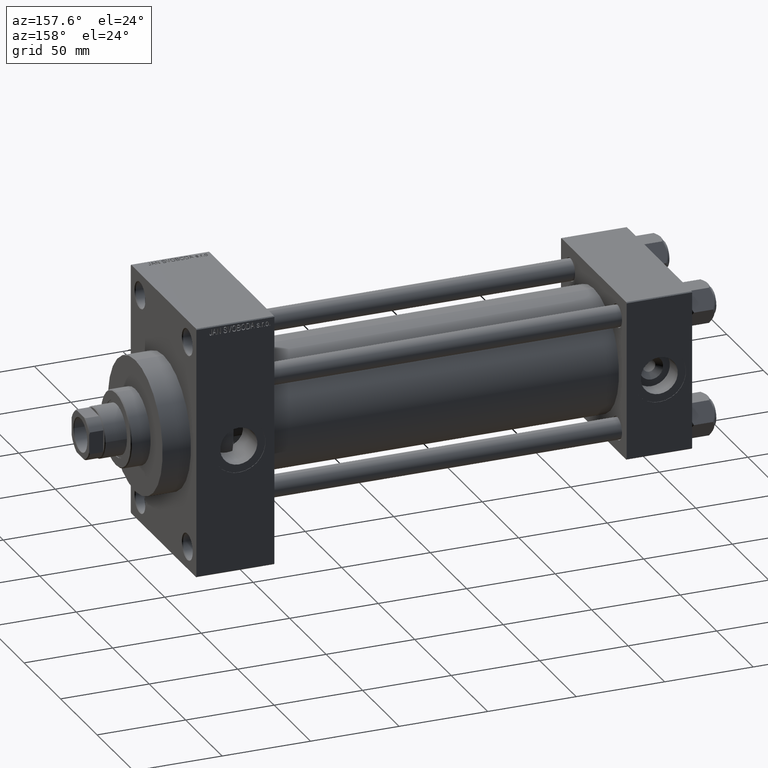
[diagram: clean part render]
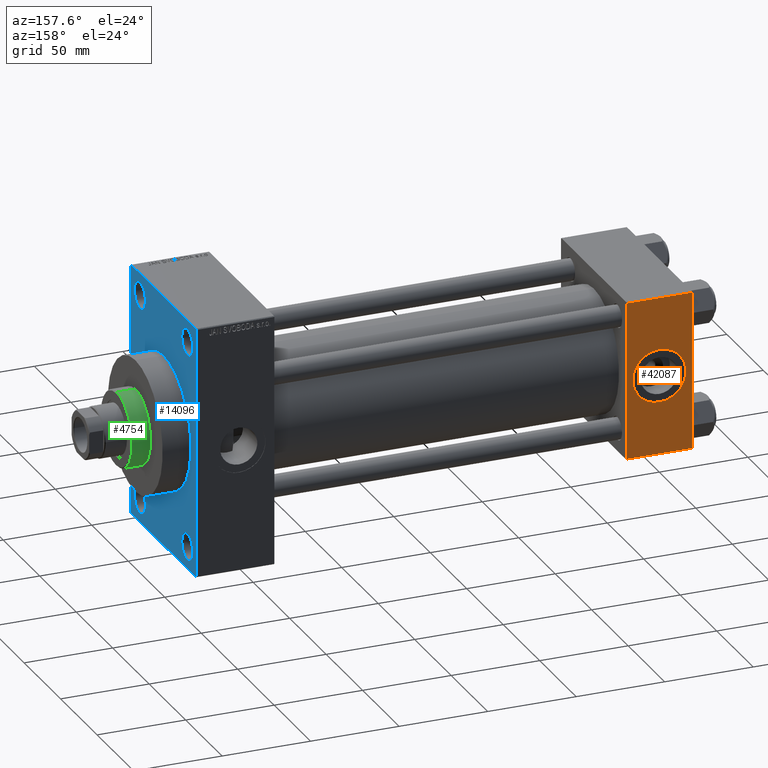
[diagram: same view with three faces highlighted in distinct colors, each labeled with its STEP entity id]
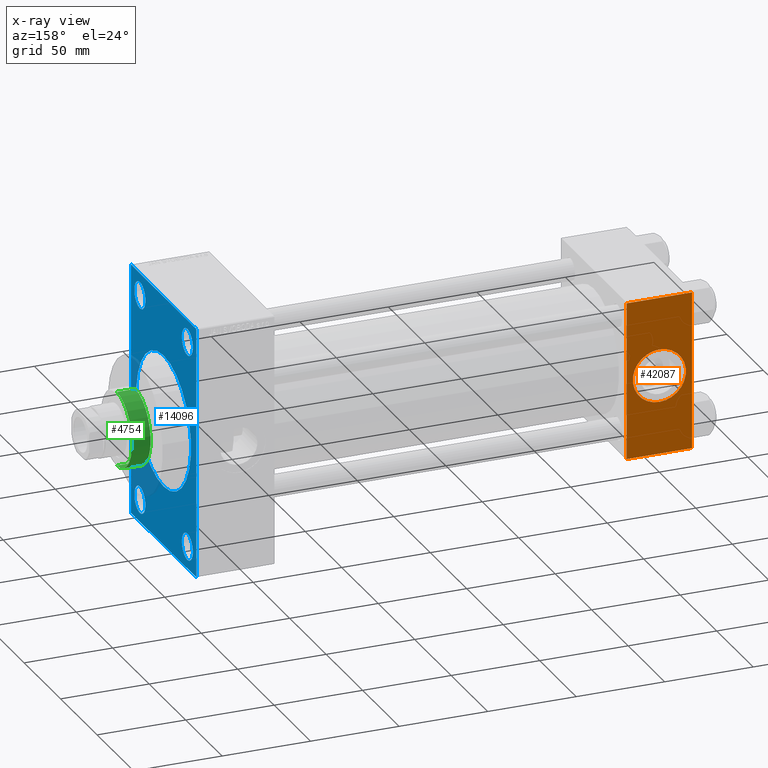
[diagram: x-ray of the same camera — body ghosted, the three highlighted faces saturated]
A machine part, auxiliary view with three faces highlighted in distinct colors.
The next image is the same camera in x-ray (body ghosted, the three faces saturated) — at least one of them is partly hidden behind the body in this view.
Their STEP definitions:

[orange] entity #42087 — the highlighted planar face has unit normal (0, 1, 0).
#2164 = VECTOR ( 'NONE', #42277, 1000.000000000000000 ) ;
#2484 = DIRECTION ( 'NONE',  ( 0.000000000000000000, -0.000000000000000000, 1.000000000000000000 ) ) ;
#3072 = VECTOR ( 'NONE', #43071, 1000.000000000000000 ) ;
#6041 = AXIS2_PLACEMENT_3D ( 'NONE', #17683, #14819, #43485 ) ;
#6530 = CARTESIAN_POINT ( 'NONE',  ( 37.00000000000000000, 44.99999999999998579, -44.49999999999998579 ) ) ;
#6641 = VECTOR ( 'NONE', #31370, 1000.000000000000000 ) ;
#6808 = LINE ( 'NONE', #10851, #13464 ) ;
#7110 = DIRECTION ( 'NONE',  ( 0.000000000000000000, 0.000000000000000000, 1.000000000000000000 ) ) ;
#9080 = AXIS2_PLACEMENT_3D ( 'NONE', #28343, #28807, #7110 ) ;
#9793 = EDGE_CURVE ( 'NONE', #23307, #25663, #6808, .T. ) ;
#10586 = EDGE_LOOP ( 'NONE', ( #40271, #16792, #35676, #43246 ) ) ;
#10851 = CARTESIAN_POINT ( 'NONE',  ( 0.000000000000000000, 44.99999999999998579, 45.00000000000001421 ) ) ;
#12004 = EDGE_LOOP ( 'NONE', ( #22883, #13448 ) ) ;
#12762 = EDGE_CURVE ( 'NONE', #23307, #43045, #13149, .T. ) ;
#13149 = LINE ( 'NONE', #27691, #2164 ) ;
#13448 = ORIENTED_EDGE ( 'NONE', *, *, #41594, .F. ) ;
#13464 = VECTOR ( 'NONE', #46923, 1000.000000000000000 ) ;
#13870 = CARTESIAN_POINT ( 'NONE',  ( 0.000000000000000000, 44.99999999999998579, 44.50000000000001421 ) ) ;
#14145 = DIRECTION ( 'NONE',  ( -0.000000000000000000, 1.000000000000000000, 0.000000000000000000 ) ) ;
#14819 = DIRECTION ( 'NONE',  ( 0.000000000000000000, 1.000000000000000000, 0.000000000000000000 ) ) ;
#15197 = AXIS2_PLACEMENT_3D ( 'NONE', #45938, #14145, #2484 ) ;
#16792 = ORIENTED_EDGE ( 'NONE', *, *, #36599, .T. ) ;
#17683 = CARTESIAN_POINT ( 'NONE',  ( 18.50000000000000000, 44.99999999999998579, 0.000000000000000000 ) ) ;
#19701 = CARTESIAN_POINT ( 'NONE',  ( 0.000000000000000000, 44.99999999999998579, -44.49999999999995737 ) ) ;
#19712 = CIRCLE ( 'NONE', #6041, 15.00000000000000178 ) ;
#21453 = EDGE_CURVE ( 'NONE', #43045, #27642, #32310, .T. ) ;
#21637 = VERTEX_POINT ( 'NONE', #27909 ) ;
#22883 = ORIENTED_EDGE ( 'NONE', *, *, #45093, .F. ) ;
#23307 = VERTEX_POINT ( 'NONE', #13870 ) ;
#25663 = VERTEX_POINT ( 'NONE', #19701 ) ;
#27106 = CARTESIAN_POINT ( 'NONE',  ( 37.00000000000000000, 44.99999999999998579, -44.49999999999995737 ) ) ;
#27642 = VERTEX_POINT ( 'NONE', #27106 ) ;
#27691 = CARTESIAN_POINT ( 'NONE',  ( 37.00000000000000000, 44.99999999999998579, 44.50000000000001421 ) ) ;
#27909 = CARTESIAN_POINT ( 'NONE',  ( 18.50000000000000000, 44.99999999999998579, 15.00000000000000178 ) ) ;
#28343 = CARTESIAN_POINT ( 'NONE',  ( 18.50000000000000000, 44.99999999999998579, 0.000000000000000000 ) ) ;
#28807 = DIRECTION ( 'NONE',  ( 0.000000000000000000, 1.000000000000000000, 0.000000000000000000 ) ) ;
#28954 = CARTESIAN_POINT ( 'NONE',  ( 37.00000000000000000, 44.99999999999998579, 45.00000000000001421 ) ) ;
#31370 = DIRECTION ( 'NONE',  ( -1.000000000000000000, 0.000000000000000000, 0.000000000000000000 ) ) ;
#31580 = PLANE ( 'NONE',  #15197 ) ;
#31806 = FACE_BOUND ( 'NONE', #12004, .T. ) ;
#32310 = LINE ( 'NONE', #28954, #3072 ) ;
#34950 = FACE_OUTER_BOUND ( 'NONE', #10586, .T. ) ;
#35478 = CARTESIAN_POINT ( 'NONE',  ( 18.50000000000000355, 44.99999999999998579, -15.00000000000000178 ) ) ;
#35676 = ORIENTED_EDGE ( 'NONE', *, *, #9793, .F. ) ;
#36599 = EDGE_CURVE ( 'NONE', #27642, #25663, #46657, .T. ) ;
#40271 = ORIENTED_EDGE ( 'NONE', *, *, #21453, .T. ) ;
#41594 = EDGE_CURVE ( 'NONE', #42525, #21637, #44148, .T. ) ;
#42087 = ADVANCED_FACE ( 'NONE', ( #31806, #34950 ), #31580, .T. ) ;
#42277 = DIRECTION ( 'NONE',  ( 1.000000000000000000, 0.000000000000000000, 0.000000000000000000 ) ) ;
#42525 = VERTEX_POINT ( 'NONE', #35478 ) ;
#43045 = VERTEX_POINT ( 'NONE', #44231 ) ;
#43071 = DIRECTION ( 'NONE',  ( 0.000000000000000000, 0.000000000000000000, -1.000000000000000000 ) ) ;
#43246 = ORIENTED_EDGE ( 'NONE', *, *, #12762, .T. ) ;
#43485 = DIRECTION ( 'NONE',  ( 0.000000000000000000, 0.000000000000000000, 1.000000000000000000 ) ) ;
#44148 = CIRCLE ( 'NONE', #9080, 15.00000000000000178 ) ;
#44231 = CARTESIAN_POINT ( 'NONE',  ( 37.00000000000000000, 44.99999999999998579, 44.50000000000001421 ) ) ;
#45093 = EDGE_CURVE ( 'NONE', #21637, #42525, #19712, .T. ) ;
#45938 = CARTESIAN_POINT ( 'NONE',  ( 37.00000000000000000, 44.99999999999998579, 45.00000000000001421 ) ) ;
#46657 = LINE ( 'NONE', #6530, #6641 ) ;
#46923 = DIRECTION ( 'NONE',  ( 0.000000000000000000, 0.000000000000000000, -1.000000000000000000 ) ) ;

[blue] entity #14096 — the highlighted planar face has unit normal (-1, 0, 0).
#10 = CIRCLE ( 'NONE', #1543, 7.499999999999992895 ) ;
#368 = FACE_BOUND ( 'NONE', #17462, .T. ) ;
#607 = FACE_OUTER_BOUND ( 'NONE', #1523, .T. ) ;
#1059 = VERTEX_POINT ( 'NONE', #40840 ) ;
#1236 = CARTESIAN_POINT ( 'NONE',  ( 280.0000000000000000, 32.50000000000000711, 51.00000000000001421 ) ) ;
#1397 = DIRECTION ( 'NONE',  ( 0.000000000000000000, -0.7071067811865474617, 0.7071067811865474617 ) ) ;
#1523 = EDGE_LOOP ( 'NONE', ( #12277, #33485, #19731, #27398, #4187, #25848, #44285, #5996 ) ) ;
#1541 = CARTESIAN_POINT ( 'NONE',  ( 280.0000000000000000, 4.592425496802575156E-15, -37.50000000000000711 ) ) ;
#1543 = AXIS2_PLACEMENT_3D ( 'NONE', #35330, #13134, #24778 ) ;
#1641 = LINE ( 'NONE', #16170, #3167 ) ;
#2346 = EDGE_CURVE ( 'NONE', #1059, #10272, #46942, .T. ) ;
#2617 = DIRECTION ( 'NONE',  ( 1.000000000000000000, 0.000000000000000000, 0.000000000000000000 ) ) ;
#2901 = AXIS2_PLACEMENT_3D ( 'NONE', #30833, #42541, #42310 ) ;
#3167 = VECTOR ( 'NONE', #30726, 1000.000000000000000 ) ;
#3305 = VERTEX_POINT ( 'NONE', #7047 ) ;
#3658 = DIRECTION ( 'NONE',  ( 0.000000000000000000, 0.000000000000000000, -1.000000000000000000 ) ) ;
#3954 = FACE_BOUND ( 'NONE', #45579, .T. ) ;
#4081 = CARTESIAN_POINT ( 'NONE',  ( 280.0000000000000000, 45.00000000000001421, -70.50000000000001421 ) ) ;
#4139 = CARTESIAN_POINT ( 'NONE',  ( 280.0000000000000000, -44.99999999999997158, 70.99999999999998579 ) ) ;
#4187 = ORIENTED_EDGE ( 'NONE', *, *, #24678, .F. ) ;
#4271 = EDGE_CURVE ( 'NONE', #37572, #33577, #46256, .T. ) ;
#4291 = CARTESIAN_POINT ( 'NONE',  ( 280.0000000000000000, 45.00000000000002132, 71.00000000000000000 ) ) ;
#4557 = VERTEX_POINT ( 'NONE', #15983 ) ;
#4714 = CARTESIAN_POINT ( 'NONE',  ( 280.0000000000000000, -32.50000000000000000, 58.50000000000000711 ) ) ;
#5320 = CARTESIAN_POINT ( 'NONE',  ( 280.0000000000000000, 32.50000000000000711, -50.99999999999999289 ) ) ;
#5338 = AXIS2_PLACEMENT_3D ( 'NONE', #21475, #36771, #32939 ) ;
#5996 = ORIENTED_EDGE ( 'NONE', *, *, #15592, .T. ) ;
#6430 = EDGE_CURVE ( 'NONE', #21754, #4557, #41271, .T. ) ;
#6733 = VERTEX_POINT ( 'NONE', #39094 ) ;
#7038 = ORIENTED_EDGE ( 'NONE', *, *, #39605, .T. ) ;
#7047 = CARTESIAN_POINT ( 'NONE',  ( 280.0000000000000000, -44.49999999999994316, -71.00000000000000000 ) ) ;
#7366 = AXIS2_PLACEMENT_3D ( 'NONE', #24422, #31589, #20617 ) ;
#7541 = VECTOR ( 'NONE', #42937, 1000.000000000000000 ) ;
#7714 = CARTESIAN_POINT ( 'NONE',  ( 280.0000000000000000, 0.000000000000000000, 0.000000000000000000 ) ) ;
#8351 = VERTEX_POINT ( 'NONE', #5320 ) ;
#9421 = CARTESIAN_POINT ( 'NONE',  ( 280.0000000000000000, -44.99999999999997158, 70.49999999999998579 ) ) ;
#9646 = AXIS2_PLACEMENT_3D ( 'NONE', #7714, #11032, #25342 ) ;
#9813 = AXIS2_PLACEMENT_3D ( 'NONE', #20735, #2617, #17147 ) ;
#10272 = VERTEX_POINT ( 'NONE', #17365 ) ;
#10339 = EDGE_CURVE ( 'NONE', #17690, #3305, #42236, .T. ) ;
#10588 = AXIS2_PLACEMENT_3D ( 'NONE', #12113, #25951, #29775 ) ;
#10902 = EDGE_CURVE ( 'NONE', #36660, #17690, #29404, .T. ) ;
#11032 = DIRECTION ( 'NONE',  ( 1.000000000000000000, 0.000000000000000000, 0.000000000000000000 ) ) ;
#12079 = VECTOR ( 'NONE', #1397, 1000.000000000000114 ) ;
#12113 = CARTESIAN_POINT ( 'NONE',  ( 280.0000000000000000, 32.50000000000000711, -58.50000000000000000 ) ) ;
#12277 = ORIENTED_EDGE ( 'NONE', *, *, #10902, .T. ) ;
#12685 = CARTESIAN_POINT ( 'NONE',  ( 280.0000000000000000, 0.000000000000000000, 0.000000000000000000 ) ) ;
#13107 = EDGE_LOOP ( 'NONE', ( #18524, #35943 ) ) ;
#13134 = DIRECTION ( 'NONE',  ( -1.000000000000000000, 0.000000000000000000, -0.000000000000000000 ) ) ;
#13158 = CARTESIAN_POINT ( 'NONE',  ( 280.0000000000000000, 32.50000000000000711, -66.00000000000000000 ) ) ;
#13330 = VERTEX_POINT ( 'NONE', #13158 ) ;
#13788 = VERTEX_POINT ( 'NONE', #39577 ) ;
#14096 = ADVANCED_FACE ( 'NONE', ( #30815, #3954, #33059, #45402, #368, #607 ), #37997, .F. ) ;
#14541 = AXIS2_PLACEMENT_3D ( 'NONE', #20905, #36191, #17322 ) ;
#14727 = ORIENTED_EDGE ( 'NONE', *, *, #43310, .T. ) ;
#14732 = EDGE_CURVE ( 'NONE', #13788, #3305, #43647, .T. ) ;
#14790 = EDGE_CURVE ( 'NONE', #8351, #13330, #15166, .T. ) ;
#14905 = DIRECTION ( 'NONE',  ( -1.000000000000000000, 0.000000000000000000, -0.000000000000000000 ) ) ;
#14997 = LINE ( 'NONE', #29542, #25081 ) ;
#15157 = CARTESIAN_POINT ( 'NONE',  ( 280.0000000000000000, 32.50000000000000711, 58.50000000000000711 ) ) ;
#15166 = CIRCLE ( 'NONE', #10588, 7.500000000000007105 ) ;
#15592 = EDGE_CURVE ( 'NONE', #26657, #36660, #26032, .T. ) ;
#15624 = DIRECTION ( 'NONE',  ( 0.000000000000000000, 0.000000000000000000, 1.000000000000000000 ) ) ;
#15829 = EDGE_CURVE ( 'NONE', #4557, #26657, #29805, .T. ) ;
#15983 = CARTESIAN_POINT ( 'NONE',  ( 280.0000000000000000, 44.50000000000002132, 71.00000000000000000 ) ) ;
#16170 = CARTESIAN_POINT ( 'NONE',  ( 280.0000000000000000, 45.00000000000002132, 71.00000000000000000 ) ) ;
#16639 = CARTESIAN_POINT ( 'NONE',  ( 280.0000000000000000, 32.50000000000000711, 66.00000000000000000 ) ) ;
#16719 = VERTEX_POINT ( 'NONE', #41050 ) ;
#16757 = CIRCLE ( 'NONE', #5338, 7.500000000000013323 ) ;
#17147 = DIRECTION ( 'NONE',  ( 0.000000000000000000, 0.000000000000000000, -1.000000000000000000 ) ) ;
#17269 = ORIENTED_EDGE ( 'NONE', *, *, #14790, .T. ) ;
#17285 = VECTOR ( 'NONE', #28351, 1000.000000000000000 ) ;
#17322 = DIRECTION ( 'NONE',  ( 0.000000000000000000, 0.000000000000000000, 1.000000000000000000 ) ) ;
#17365 = CARTESIAN_POINT ( 'NONE',  ( 280.0000000000000000, -32.50000000000000000, 66.00000000000000000 ) ) ;
#17462 = EDGE_LOOP ( 'NONE', ( #32080, #40149 ) ) ;
#17690 = VERTEX_POINT ( 'NONE', #39168 ) ;
#17988 = CARTESIAN_POINT ( 'NONE',  ( 280.0000000000000000, -44.49999999999995026, 70.99999999999998579 ) ) ;
#18524 = ORIENTED_EDGE ( 'NONE', *, *, #21638, .T. ) ;
#18801 = CIRCLE ( 'NONE', #7366, 7.500000000000013323 ) ;
#18824 = EDGE_CURVE ( 'NONE', #33577, #37572, #44899, .T. ) ;
#18874 = CARTESIAN_POINT ( 'NONE',  ( 280.0000000000000000, -44.99999999999997158, 70.49999999999998579 ) ) ;
#19641 = CIRCLE ( 'NONE', #2901, 7.500000000000007105 ) ;
#19731 = ORIENTED_EDGE ( 'NONE', *, *, #14732, .F. ) ;
#20617 = DIRECTION ( 'NONE',  ( 0.000000000000000000, 0.000000000000000000, 1.000000000000000000 ) ) ;
#20735 = CARTESIAN_POINT ( 'NONE',  ( 280.0000000000000000, 0.000000000000000000, 0.000000000000000000 ) ) ;
#20905 = CARTESIAN_POINT ( 'NONE',  ( 280.0000000000000000, -32.50000000000000000, 58.50000000000000711 ) ) ;
#20985 = EDGE_CURVE ( 'NONE', #13788, #46323, #14997, .T. ) ;
#21210 = AXIS2_PLACEMENT_3D ( 'NONE', #12685, #14905, #39990 ) ;
#21475 = CARTESIAN_POINT ( 'NONE',  ( 280.0000000000000000, -32.50000000000000000, -58.49999999999999289 ) ) ;
#21638 = EDGE_CURVE ( 'NONE', #26327, #33811, #10, .T. ) ;
#21754 = VERTEX_POINT ( 'NONE', #46785 ) ;
#23053 = DIRECTION ( 'NONE',  ( 0.000000000000000000, 0.000000000000000000, 1.000000000000000000 ) ) ;
#23864 = EDGE_CURVE ( 'NONE', #10272, #1059, #45850, .T. ) ;
#24422 = CARTESIAN_POINT ( 'NONE',  ( 280.0000000000000000, -32.50000000000000000, -58.49999999999999289 ) ) ;
#24678 = EDGE_CURVE ( 'NONE', #21754, #46323, #1641, .T. ) ;
#24778 = DIRECTION ( 'NONE',  ( 0.000000000000000000, 0.000000000000000000, 1.000000000000000000 ) ) ;
#25081 = VECTOR ( 'NONE', #44138, 999.9999999999998863 ) ;
#25342 = DIRECTION ( 'NONE',  ( 0.000000000000000000, 0.000000000000000000, -1.000000000000000000 ) ) ;
#25496 = DIRECTION ( 'NONE',  ( 0.000000000000000000, -1.000000000000000000, -1.541976423090495387E-16 ) ) ;
#25848 = ORIENTED_EDGE ( 'NONE', *, *, #6430, .T. ) ;
#25951 = DIRECTION ( 'NONE',  ( -1.000000000000000000, 0.000000000000000000, -0.000000000000000000 ) ) ;
#26032 = LINE ( 'NONE', #18874, #26557 ) ;
#26327 = VERTEX_POINT ( 'NONE', #1236 ) ;
#26557 = VECTOR ( 'NONE', #41099, 1000.000000000000000 ) ;
#26657 = VERTEX_POINT ( 'NONE', #17988 ) ;
#27145 = EDGE_LOOP ( 'NONE', ( #33224, #42332 ) ) ;
#27398 = ORIENTED_EDGE ( 'NONE', *, *, #20985, .T. ) ;
#28351 = DIRECTION ( 'NONE',  ( 0.000000000000000000, 0.7071067811865573427, -0.7071067811865378028 ) ) ;
#28819 = CARTESIAN_POINT ( 'NONE',  ( 280.0000000000000000, 45.00000000000001421, -70.99999999999998579 ) ) ;
#28905 = VECTOR ( 'NONE', #25496, 1000.000000000000000 ) ;
#29076 = CARTESIAN_POINT ( 'NONE',  ( 280.0000000000000000, 0.000000000000000000, 37.50000000000000711 ) ) ;
#29404 = LINE ( 'NONE', #4139, #39420 ) ;
#29542 = CARTESIAN_POINT ( 'NONE',  ( 280.0000000000000000, 45.00000000000001421, -70.50000000000001421 ) ) ;
#29775 = DIRECTION ( 'NONE',  ( 0.000000000000000000, 0.000000000000000000, 1.000000000000000000 ) ) ;
#29805 = LINE ( 'NONE', #4291, #28905 ) ;
#30332 = ORIENTED_EDGE ( 'NONE', *, *, #35606, .T. ) ;
#30726 = DIRECTION ( 'NONE',  ( 0.000000000000000000, -4.886545002751570165E-17, -1.000000000000000000 ) ) ;
#30815 = FACE_BOUND ( 'NONE', #27145, .T. ) ;
#30833 = CARTESIAN_POINT ( 'NONE',  ( 280.0000000000000000, 32.50000000000000711, -58.50000000000000000 ) ) ;
#31589 = DIRECTION ( 'NONE',  ( -1.000000000000000000, 0.000000000000000000, -0.000000000000000000 ) ) ;
#32080 = ORIENTED_EDGE ( 'NONE', *, *, #18824, .F. ) ;
#32939 = DIRECTION ( 'NONE',  ( 0.000000000000000000, 0.000000000000000000, 1.000000000000000000 ) ) ;
#33059 = FACE_BOUND ( 'NONE', #35418, .T. ) ;
#33224 = ORIENTED_EDGE ( 'NONE', *, *, #2346, .T. ) ;
#33305 = DIRECTION ( 'NONE',  ( -1.000000000000000000, 0.000000000000000000, -0.000000000000000000 ) ) ;
#33485 = ORIENTED_EDGE ( 'NONE', *, *, #10339, .T. ) ;
#33577 = VERTEX_POINT ( 'NONE', #29076 ) ;
#33811 = VERTEX_POINT ( 'NONE', #16639 ) ;
#35330 = CARTESIAN_POINT ( 'NONE',  ( 280.0000000000000000, 32.50000000000000711, 58.50000000000000711 ) ) ;
#35418 = EDGE_LOOP ( 'NONE', ( #7038, #17269 ) ) ;
#35606 = EDGE_CURVE ( 'NONE', #6733, #16719, #18801, .T. ) ;
#35794 = AXIS2_PLACEMENT_3D ( 'NONE', #15157, #33305, #15624 ) ;
#35943 = ORIENTED_EDGE ( 'NONE', *, *, #42685, .T. ) ;
#36191 = DIRECTION ( 'NONE',  ( -1.000000000000000000, 0.000000000000000000, -0.000000000000000000 ) ) ;
#36660 = VERTEX_POINT ( 'NONE', #9421 ) ;
#36771 = DIRECTION ( 'NONE',  ( -1.000000000000000000, 0.000000000000000000, -0.000000000000000000 ) ) ;
#37572 = VERTEX_POINT ( 'NONE', #1541 ) ;
#37794 = AXIS2_PLACEMENT_3D ( 'NONE', #4714, #44802, #23053 ) ;
#37997 = PLANE ( 'NONE',  #21210 ) ;
#39094 = CARTESIAN_POINT ( 'NONE',  ( 280.0000000000000000, -32.50000000000000000, -50.99999999999998579 ) ) ;
#39168 = CARTESIAN_POINT ( 'NONE',  ( 280.0000000000000000, -44.99999999999997158, -70.50000000000000000 ) ) ;
#39420 = VECTOR ( 'NONE', #3658, 1000.000000000000000 ) ;
#39577 = CARTESIAN_POINT ( 'NONE',  ( 280.0000000000000000, 44.50000000000004263, -70.99999999999998579 ) ) ;
#39605 = EDGE_CURVE ( 'NONE', #13330, #8351, #19641, .T. ) ;
#39990 = DIRECTION ( 'NONE',  ( -0.000000000000000000, 0.000000000000000000, 1.000000000000000000 ) ) ;
#40149 = ORIENTED_EDGE ( 'NONE', *, *, #4271, .F. ) ;
#40566 = CARTESIAN_POINT ( 'NONE',  ( 280.0000000000000000, 44.50000000000002132, 71.00000000000000000 ) ) ;
#40840 = CARTESIAN_POINT ( 'NONE',  ( 280.0000000000000000, -32.50000000000000000, 51.00000000000001421 ) ) ;
#41050 = CARTESIAN_POINT ( 'NONE',  ( 280.0000000000000000, -32.50000000000000000, -65.99999999999998579 ) ) ;
#41099 = DIRECTION ( 'NONE',  ( -0.000000000000000000, -0.7071067811865426878, -0.7071067811865524577 ) ) ;
#41271 = LINE ( 'NONE', #40566, #12079 ) ;
#42236 = LINE ( 'NONE', #42699, #17285 ) ;
#42310 = DIRECTION ( 'NONE',  ( 0.000000000000000000, 0.000000000000000000, 1.000000000000000000 ) ) ;
#42332 = ORIENTED_EDGE ( 'NONE', *, *, #23864, .T. ) ;
#42541 = DIRECTION ( 'NONE',  ( -1.000000000000000000, 0.000000000000000000, -0.000000000000000000 ) ) ;
#42685 = EDGE_CURVE ( 'NONE', #33811, #26327, #46501, .T. ) ;
#42699 = CARTESIAN_POINT ( 'NONE',  ( 280.0000000000000000, -44.49999999999997158, -71.00000000000000000 ) ) ;
#42937 = DIRECTION ( 'NONE',  ( 0.000000000000000000, -1.000000000000000000, -1.541976423090495633E-16 ) ) ;
#43310 = EDGE_CURVE ( 'NONE', #16719, #6733, #16757, .T. ) ;
#43647 = LINE ( 'NONE', #28819, #7541 ) ;
#44138 = DIRECTION ( 'NONE',  ( -0.000000000000000000, 0.7071067811865574537, 0.7071067811865376918 ) ) ;
#44285 = ORIENTED_EDGE ( 'NONE', *, *, #15829, .T. ) ;
#44802 = DIRECTION ( 'NONE',  ( -1.000000000000000000, 0.000000000000000000, -0.000000000000000000 ) ) ;
#44899 = CIRCLE ( 'NONE', #9813, 37.50000000000000711 ) ;
#45402 = FACE_BOUND ( 'NONE', #13107, .T. ) ;
#45579 = EDGE_LOOP ( 'NONE', ( #14727, #30332 ) ) ;
#45850 = CIRCLE ( 'NONE', #14541, 7.499999999999992895 ) ;
#46256 = CIRCLE ( 'NONE', #9646, 37.50000000000000711 ) ;
#46323 = VERTEX_POINT ( 'NONE', #4081 ) ;
#46501 = CIRCLE ( 'NONE', #35794, 7.499999999999992895 ) ;
#46785 = CARTESIAN_POINT ( 'NONE',  ( 280.0000000000000000, 45.00000000000002132, 70.50000000000000000 ) ) ;
#46942 = CIRCLE ( 'NONE', #37794, 7.499999999999992895 ) ;

[green] entity #4754 — the highlighted cylindrical surface (partial cylindrical patch) has radius 21 mm, axis along (-1, 0, 0).
#1556 = DIRECTION ( 'NONE',  ( 0.000000000000000000, 0.000000000000000000, -1.000000000000000000 ) ) ;
#3157 = ORIENTED_EDGE ( 'NONE', *, *, #21355, .F. ) ;
#4754 = ADVANCED_FACE ( 'NONE', ( #41071 ), #40360, .T. ) ;
#7931 = CARTESIAN_POINT ( 'NONE',  ( 0.000000000000000000, 0.000000000000000000, 43.25999999999999801 ) ) ;
#8185 = ORIENTED_EDGE ( 'NONE', *, *, #43792, .T. ) ;
#8405 = VECTOR ( 'NONE', #25908, 1000.000000000000000 ) ;
#8681 = CARTESIAN_POINT ( 'NONE',  ( -21.00000000000000000, 0.000000000000000000, 43.25999999999999801 ) ) ;
#11309 = CIRCLE ( 'NONE', #31878, 21.00000000000000000 ) ;
#11425 = CIRCLE ( 'NONE', #25119, 21.00000000000000000 ) ;
#14239 = AXIS2_PLACEMENT_3D ( 'NONE', #20258, #20723, #27886 ) ;
#15545 = DIRECTION ( 'NONE',  ( 1.000000000000000000, 0.000000000000000000, 0.000000000000000000 ) ) ;
#16094 = DIRECTION ( 'NONE',  ( 1.000000000000000000, 0.000000000000000000, 0.000000000000000000 ) ) ;
#18129 = CARTESIAN_POINT ( 'NONE',  ( 21.00000000000000000, 2.571758278209441661E-15, 43.25999999999999801 ) ) ;
#18513 = LINE ( 'NONE', #44076, #8405 ) ;
#20258 = CARTESIAN_POINT ( 'NONE',  ( 0.000000000000000000, 0.000000000000000000, 54.26000000000000512 ) ) ;
#20698 = ORIENTED_EDGE ( 'NONE', *, *, #40029, .T. ) ;
#20723 = DIRECTION ( 'NONE',  ( -0.000000000000000000, -0.000000000000000000, -1.000000000000000000 ) ) ;
#21355 = EDGE_CURVE ( 'NONE', #31929, #31408, #18513, .T. ) ;
#21470 = EDGE_CURVE ( 'NONE', #29101, #33490, #35672, .T. ) ;
#21791 = DIRECTION ( 'NONE',  ( -0.000000000000000000, -0.000000000000000000, -1.000000000000000000 ) ) ;
#23466 = ORIENTED_EDGE ( 'NONE', *, *, #21470, .T. ) ;
#24201 = CARTESIAN_POINT ( 'NONE',  ( -21.00000000000000000, 0.000000000000000000, 53.76000000000001933 ) ) ;
#25119 = AXIS2_PLACEMENT_3D ( 'NONE', #41423, #1556, #16094 ) ;
#25908 = DIRECTION ( 'NONE',  ( -0.000000000000000000, -0.000000000000000000, -1.000000000000000000 ) ) ;
#26503 = DIRECTION ( 'NONE',  ( 0.000000000000000000, 0.000000000000000000, 1.000000000000000000 ) ) ;
#27886 = DIRECTION ( 'NONE',  ( -1.000000000000000000, 0.000000000000000000, 0.000000000000000000 ) ) ;
#28535 = CARTESIAN_POINT ( 'NONE',  ( 21.00000000000000000, 2.571758278209441661E-15, 53.76000000000001933 ) ) ;
#29101 = VERTEX_POINT ( 'NONE', #24201 ) ;
#31408 = VERTEX_POINT ( 'NONE', #18129 ) ;
#31878 = AXIS2_PLACEMENT_3D ( 'NONE', #7931, #26503, #15545 ) ;
#31929 = VERTEX_POINT ( 'NONE', #28535 ) ;
#33490 = VERTEX_POINT ( 'NONE', #8681 ) ;
#35672 = LINE ( 'NONE', #39246, #41174 ) ;
#39246 = CARTESIAN_POINT ( 'NONE',  ( -21.00000000000000000, 0.000000000000000000, 54.26000000000000512 ) ) ;
#40029 = EDGE_CURVE ( 'NONE', #33490, #31408, #11309, .T. ) ;
#40360 = CYLINDRICAL_SURFACE ( 'NONE', #14239, 21.00000000000000000 ) ;
#41071 = FACE_OUTER_BOUND ( 'NONE', #45823, .T. ) ;
#41174 = VECTOR ( 'NONE', #21791, 1000.000000000000000 ) ;
#41423 = CARTESIAN_POINT ( 'NONE',  ( 0.000000000000000000, 0.000000000000000000, 53.76000000000001933 ) ) ;
#43792 = EDGE_CURVE ( 'NONE', #31929, #29101, #11425, .T. ) ;
#44076 = CARTESIAN_POINT ( 'NONE',  ( 21.00000000000000000, 2.571758278209441661E-15, 54.26000000000000512 ) ) ;
#45823 = EDGE_LOOP ( 'NONE', ( #3157, #8185, #23466, #20698 ) ) ;